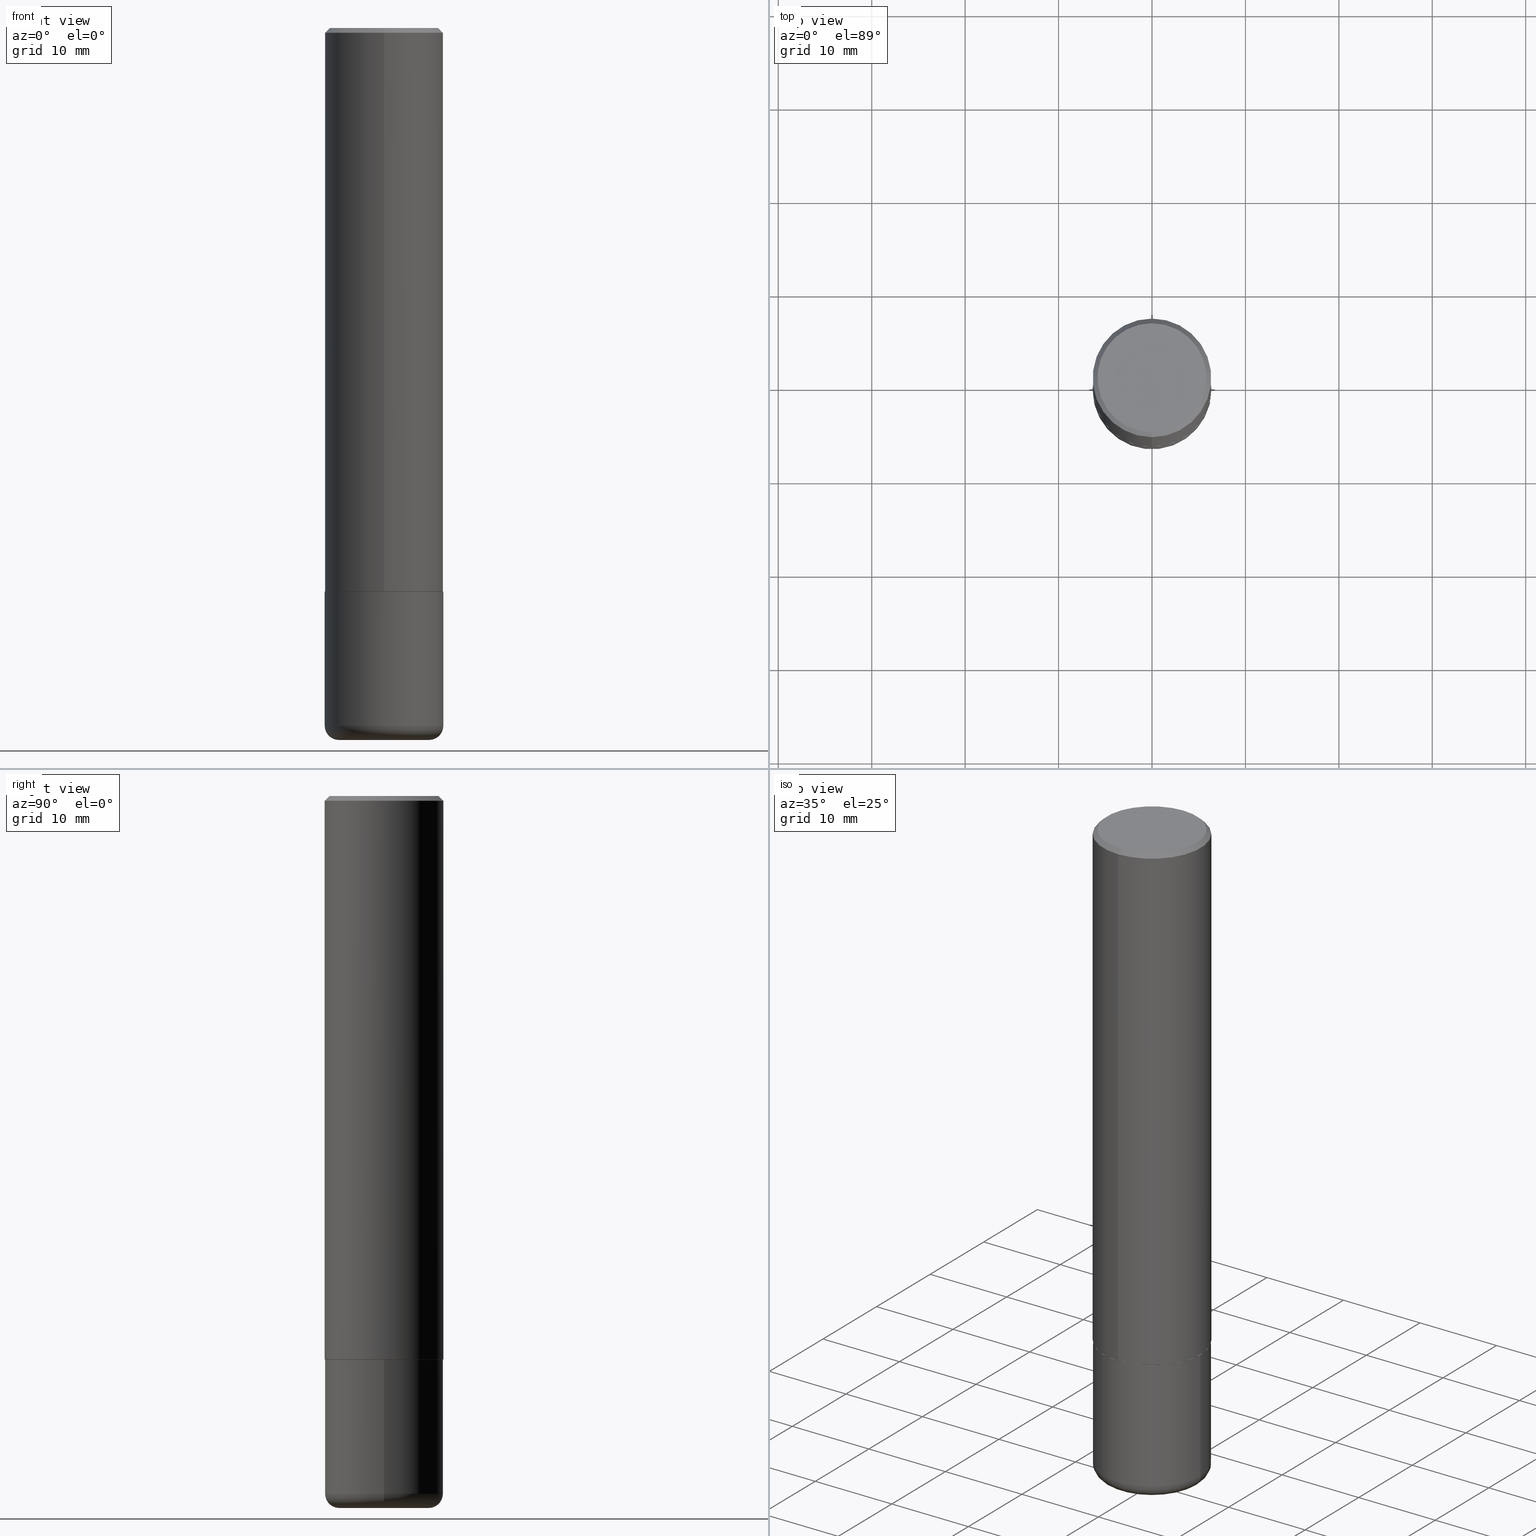
[diagram: canonical four-view strip — front | top / right | iso, engineering-drawing reading convention]
A machine part, canonical four-view strip (front | top / right | iso — engineering-drawing reading convention). The complete STEP part file that produces these views, byte-faithful:
ISO-10303-21;
HEADER;
FILE_DESCRIPTION (( 'STEP AP203' ),
    '1' );
FILE_NAME ('37027.STEP',
    '2024-03-01T18:52:10',
    ( '' ),
    ( '' ),
    'SwSTEP 2.0',
    'SolidWorks 2023',
    '' );
FILE_SCHEMA (( 'CONFIG_CONTROL_DESIGN' ));
ENDSEC;

DATA;
#1 = VERTEX_POINT ( 'NONE', #284 ) ;
#2 = DIRECTION ( 'NONE',  ( -2.445468806185136597E-29, 3.491481338843145583E-15, 1.000000000000000000 ) ) ;
#3 = ORIENTED_EDGE ( 'NONE', *, *, #314, .T. ) ;
#4 = ADVANCED_FACE ( 'NONE', ( #350 ), #411, .T. ) ;
#5 = AXIS2_PLACEMENT_3D ( 'NONE', #324, #34, #155 ) ;
#6 =( LENGTH_UNIT ( ) NAMED_UNIT ( * ) SI_UNIT ( $, .METRE. ) );
#7 = ORGANIZATION ( 'UNSPECIFIED', 'UNSPECIFIED', '' ) ;
#8 = VERTEX_POINT ( 'NONE', #317 ) ;
#9 = DIRECTION ( 'NONE',  ( -2.445468806185136597E-29, 3.491481338843145583E-15, 1.000000000000000000 ) ) ;
#10 = ORIENTED_EDGE ( 'NONE', *, *, #407, .T. ) ;
#11 =( NAMED_UNIT ( * ) SI_UNIT ( $, .STERADIAN. ) SOLID_ANGLE_UNIT ( ) );
#12 = DIRECTION ( 'NONE',  ( -6.982962677686265922E-15, -1.000000000000000000, 3.483106191921935554E-15 ) ) ;
#13 = ORIENTED_EDGE ( 'NONE', *, *, #338, .F. ) ;
#14 = ADVANCED_FACE ( 'NONE', ( #229 ), #253, .T. ) ;
#15 = CIRCLE ( 'NONE', #5, 0.2500000000000000000 ) ;
#16 = FACE_OUTER_BOUND ( 'NONE', #389, .T. ) ;
#17 = LOCAL_TIME ( 13, 52, 9.000000000000000000, #142 ) ;
#18 = ORIENTED_EDGE ( 'NONE', *, *, #351, .F. ) ;
#19 = PERSON_AND_ORGANIZATION ( #111, #7 ) ;
#20 = CARTESIAN_POINT ( 'NONE',  ( 4.891459535375212615E-31, -6.982215254237243146E-17, -0.02000000000000005593 ) ) ;
#21 = COORDINATED_UNIVERSAL_TIME_OFFSET ( 5, 0, .BEHIND. ) ;
#22 = AXIS2_PLACEMENT_3D ( 'NONE', #20, #398, #12 ) ;
#23 = ORIENTED_EDGE ( 'NONE', *, *, #178, .F. ) ;
#24 = EDGE_CURVE ( 'NONE', #74, #125, #77, .T. ) ;
#25 = AXIS2_PLACEMENT_3D ( 'NONE', #383, #360, #55 ) ;
#26 = DIRECTION ( 'NONE',  ( -2.445729767687599458E-29, 3.491107627118612255E-15, 1.000000000000000000 ) ) ;
#27 = ADVANCED_FACE ( 'NONE', ( #194 ), #318, .T. ) ;
#28 = FACE_OUTER_BOUND ( 'NONE', #35, .T. ) ;
#29 = AXIS2_PLACEMENT_3D ( 'NONE', #249, #281, #352 ) ;
#30 = EDGE_LOOP ( 'NONE', ( #60, #152 ) ) ;
#31 = DIRECTION ( 'NONE',  ( -2.445729767687599458E-29, 3.491107627118612255E-15, 1.000000000000000000 ) ) ;
#32 = CARTESIAN_POINT ( 'NONE',  ( 7.336406418555409790E-29, -1.047444401652943635E-14, -3.000000000000000444 ) ) ;
#33 = EDGE_CURVE ( 'NONE', #53, #225, #61, .T. ) ;
#34 = DIRECTION ( 'NONE',  ( -2.445729767687599458E-29, 3.491107627118612255E-15, 1.000000000000000000 ) ) ;
#35 = EDGE_LOOP ( 'NONE', ( #3, #40, #397, #18 ) ) ;
#36 = PRODUCT_DEFINITION_FORMATION_WITH_SPECIFIED_SOURCE ( 'ANY', '', #191, .NOT_KNOWN. ) ;
#37 = CARTESIAN_POINT ( 'NONE',  ( -1.715124499442882299E-15, -0.2500000000000000555, -0.01999999999999918510 ) ) ;
#38 = VERTEX_POINT ( 'NONE', #150 ) ;
#39 = CARTESIAN_POINT ( 'NONE',  ( 7.336406418555409790E-29, -1.047444401652943635E-14, -3.000000000000000444 ) ) ;
#40 = ORIENTED_EDGE ( 'NONE', *, *, #132, .T. ) ;
#41 = CC_DESIGN_PERSON_AND_ORGANIZATION_ASSIGNMENT ( #66, #308, ( #36 ) ) ;
#42 = DIRECTION ( 'NONE',  ( -2.445729767687598898E-29, 3.491107627118612649E-15, 1.000000000000000000 ) ) ;
#43 = DIRECTION ( 'NONE',  ( 2.438088387897960049E-29, -3.491481338843145188E-15, -1.000000000000000000 ) ) ;
#44 = EDGE_LOOP ( 'NONE', ( #240, #167 ) ) ;
#45 = PERSON_AND_ORGANIZATION_ROLE ( 'creator' ) ;
#46 = SECURITY_CLASSIFICATION ( '', '', #170 ) ;
#47 = DIRECTION ( 'NONE',  ( -6.982962677686265133E-15, -1.000000000000000000, 3.291383124896702687E-15 ) ) ;
#48 = DIRECTION ( 'NONE',  ( -1.000000000000000000, 6.982962677686265922E-15, -4.876176775795935793E-29 ) ) ;
#49 = EDGE_CURVE ( 'NONE', #38, #94, #415, .T. ) ;
#50 = APPROVAL_PERSON_ORGANIZATION ( #138, #71, #362 ) ;
#51 = DATE_AND_TIME ( #311, #160 ) ;
#52 = DIRECTION ( 'NONE',  ( -2.445729767687599458E-29, 3.491107627118612255E-15, 1.000000000000000000 ) ) ;
#53 = VERTEX_POINT ( 'NONE', #287 ) ;
#54 = DESIGN_CONTEXT ( 'detailed design', #121, 'design' ) ;
#55 = DIRECTION ( 'NONE',  ( -6.982962677686265922E-15, -1.000000000000000000, 3.278217592397112312E-15 ) ) ;
#56 = LINE ( 'NONE', #110, #223 ) ;
#57 = AXIS2_PLACEMENT_3D ( 'NONE', #404, #306, #400 ) ;
#58 = DIRECTION ( 'NONE',  ( -6.982962677686265133E-15, -1.000000000000000000, 3.291383124896702687E-15 ) ) ;
#59 = ADVANCED_FACE ( 'NONE', ( #217 ), #115, .T. ) ;
#60 = ORIENTED_EDGE ( 'NONE', *, *, #262, .F. ) ;
#61 = CIRCLE ( 'NONE', #25, 0.2500000000000002776 ) ;
#62 = VECTOR ( 'NONE', #131, 39.37007874015748143 ) ;
#63 =( GEOMETRIC_REPRESENTATION_CONTEXT ( 3 ) GLOBAL_UNCERTAINTY_ASSIGNED_CONTEXT ( ( #325 ) ) GLOBAL_UNIT_ASSIGNED_CONTEXT ( ( #373, #405, #11 ) ) REPRESENTATION_CONTEXT ( 'NONE', 'WORKASPACE' ) );
#64 = ORIENTED_EDGE ( 'NONE', *, *, #379, .F. ) ;
#65 = FACE_OUTER_BOUND ( 'NONE', #190, .T. ) ;
#66 = PERSON_AND_ORGANIZATION ( #111, #7 ) ;
#67 = CYLINDRICAL_SURFACE ( 'NONE', #57, 0.2500000000000001110 ) ;
#68 = ORIENTED_EDGE ( 'NONE', *, *, #178, .T. ) ;
#69 = APPROVAL_STATUS ( 'not_yet_approved' ) ;
#70 = CARTESIAN_POINT ( 'NONE',  ( -3.025389942482403152E-45, 4.318531852026494479E-31, 1.237009085162692923E-16 ) ) ;
#71 = APPROVAL ( #202, 'UNSPECIFIED' ) ;
#72 = ORIENTED_EDGE ( 'NONE', *, *, #33, .F. ) ;
#73 = DIRECTION ( 'NONE',  ( 5.024295867788576727E-15, 0.7071067811866224018, 0.7071067811864726327 ) ) ;
#74 = VERTEX_POINT ( 'NONE', #82 ) ;
#75 = APPROVAL_DATE_TIME ( #368, #71 ) ;
#76 = DIRECTION ( 'NONE',  ( -2.445729767687599458E-29, 3.491107627118612255E-15, 1.000000000000000000 ) ) ;
#77 = CIRCLE ( 'NONE', #257, 0.2500000000000000000 ) ;
#78 = DIRECTION ( 'NONE',  ( 1.000000000000000000, -6.982962677686266711E-15, 0.000000000000000000 ) ) ;
#79 = DIRECTION ( 'NONE',  ( -2.445468806185136597E-29, 3.491481338843145583E-15, 1.000000000000000000 ) ) ;
#80 = CC_DESIGN_APPROVAL ( #301, ( #184 ) ) ;
#81 = CC_DESIGN_DATE_AND_TIME_ASSIGNMENT ( #344, #315, ( #46 ) ) ;
#82 = CARTESIAN_POINT ( 'NONE',  ( 0.2500000000000000000, -1.003800884917403837E-14, -2.375000000000000000 ) ) ;
#83 = DIRECTION ( 'NONE',  ( -1.000000000000000000, 7.105427357600997914E-15, 0.000000000000000000 ) ) ;
#84 = ORIENTED_EDGE ( 'NONE', *, *, #153, .T. ) ;
#85 = EDGE_CURVE ( 'NONE', #268, #38, #148, .T. ) ;
#86 = CIRCLE ( 'NONE', #188, 0.1899999999999999745 ) ;
#87 = ORIENTED_EDGE ( 'NONE', *, *, #158, .T. ) ;
#88 = CARTESIAN_POINT ( 'NONE',  ( 0.000000000000000000, 0.000000000000000000, 0.000000000000000000 ) ) ;
#89 = DIRECTION ( 'NONE',  ( 2.445729767687599458E-29, -3.491107627118612255E-15, -1.000000000000000000 ) ) ;
#90 = AXIS2_PLACEMENT_3D ( 'NONE', #294, #250, #176 ) ;
#91 = ORIENTED_EDGE ( 'NONE', *, *, #218, .F. ) ;
#92 = CALENDAR_DATE ( 2024, 1, 3 ) ;
#93 = FACE_OUTER_BOUND ( 'NONE', #44, .T. ) ;
#94 = VERTEX_POINT ( 'NONE', #391 ) ;
#95 = CARTESIAN_POINT ( 'NONE',  ( 0.000000000000000000, 0.000000000000000000, 0.000000000000000000 ) ) ;
#96 = EDGE_CURVE ( 'NONE', #94, #204, #159, .T. ) ;
#97 = APPLICATION_CONTEXT ( 'configuration controlled 3d designs of mechanical parts and assemblies' ) ;
#98 = DIRECTION ( 'NONE',  ( 6.982962677686265922E-15, 1.000000000000000000, -3.491107627118612649E-15 ) ) ;
#99 = ORIENTED_EDGE ( 'NONE', *, *, #33, .T. ) ;
#100 = CIRCLE ( 'NONE', #358, 0.2299999999999998712 ) ;
#101 = AXIS2_PLACEMENT_3D ( 'NONE', #186, #31, #260 ) ;
#102 = DIRECTION ( 'NONE',  ( 4.937700262164541731E-15, 0.7071067811865442421, -0.7071067811865507924 ) ) ;
#103 = ORIENTED_EDGE ( 'NONE', *, *, #384, .T. ) ;
#104 = PERSON_AND_ORGANIZATION ( #111, #7 ) ;
#105 = CARTESIAN_POINT ( 'NONE',  ( 7.336406418555409790E-29, -1.047444401652943635E-14, -3.000000000000000444 ) ) ;
#106 = ADVANCED_FACE ( 'NONE', ( #65 ), #313, .T. ) ;
#107 = PLANE ( 'NONE',  #291 ) ;
#108 = CARTESIAN_POINT ( 'NONE',  ( 0.2499999999999999722, -1.201069580562041471E-14, -2.940000000000000391 ) ) ;
#109 = AXIS2_PLACEMENT_3D ( 'NONE', #146, #26, #58 ) ;
#110 = CARTESIAN_POINT ( 'NONE',  ( -1.738757706743822090E-15, -0.2490000000000082980, -2.374999999999999556 ) ) ;
#111 = PERSON ( 'UNSPECIFIED', 'UNSPECIFIED', 'UNSPECIFIED', ('UNSPECIFIED'), ('UNSPECIFIED'), ('UNSPECIFIED') ) ;
#112 = CARTESIAN_POINT ( 'NONE',  ( 1.776356839400251254E-15, 0.2500000000000001110, -8.727769067796535567E-16 ) ) ;
#113 = APPROVAL_DATE_TIME ( #51, #357 ) ;
#114 = CC_DESIGN_PERSON_AND_ORGANIZATION_ASSIGNMENT ( #339, #45, ( #36 ) ) ;
#115 = TOROIDAL_SURFACE ( 'NONE', #251, 0.1899999999999999745, 0.05999999999999995615 ) ;
#116 = DIRECTION ( 'NONE',  ( -6.982962677686266711E-15, -1.000000000000000000, 3.491107627118612649E-15 ) ) ;
#117 = LINE ( 'NONE', #112, #323 ) ;
#118 = CARTESIAN_POINT ( 'NONE',  ( 0.000000000000000000, 0.000000000000000000, 0.000000000000000000 ) ) ;
#119 = EDGE_CURVE ( 'NONE', #120, #8, #15, .T. ) ;
#120 = VERTEX_POINT ( 'NONE', #374 ) ;
#121 = APPLICATION_CONTEXT ( 'configuration controlled 3d designs of mechanical parts and assemblies' ) ;
#122 = CIRCLE ( 'NONE', #208, 0.2489999999999999991 ) ;
#123 = ORIENTED_EDGE ( 'NONE', *, *, #338, .T. ) ;
#124 = DIRECTION ( 'NONE',  ( 1.000000000000000000, -6.982962677686266711E-15, 4.876176775795935793E-29 ) ) ;
#125 = VERTEX_POINT ( 'NONE', #366 ) ;
#126 = PRODUCT_RELATED_PRODUCT_CATEGORY ( 'detail', '', ( #191 ) ) ;
#127 = DIRECTION ( 'NONE',  ( 1.000000000000000000, -6.982962677686262766E-15, 0.000000000000000000 ) ) ;
#128 = MANIFOLD_SOLID_BREP ( 'Body-Move/Copy2[1]', #285 ) ;
#129 = DIRECTION ( 'NONE',  ( -2.445468806185136597E-29, 3.491481338843145583E-15, 1.000000000000000000 ) ) ;
#130 = AXIS2_PLACEMENT_3D ( 'NONE', #333, #369, #48 ) ;
#131 = DIRECTION ( 'NONE',  ( -2.445468806185136877E-29, 3.491481338843145188E-15, 1.000000000000000000 ) ) ;
#132 = EDGE_CURVE ( 'NONE', #94, #125, #312, .T. ) ;
#133 = DIRECTION ( 'NONE',  ( -2.445729767687599458E-29, 3.491107627118612255E-15, 1.000000000000000000 ) ) ;
#134 = ORIENTED_EDGE ( 'NONE', *, *, #262, .T. ) ;
#135 = CARTESIAN_POINT ( 'NONE',  ( -1.646519519465166573E-15, -0.2299999999999998712, 9.266556627535495054E-16 ) ) ;
#136 = ORIENTED_EDGE ( 'NONE', *, *, #277, .T. ) ;
#137 = CONICAL_SURFACE ( 'NONE', #252, 0.2500000000000000000, 0.7853981633974471688 ) ;
#138 = PERSON_AND_ORGANIZATION ( #111, #7 ) ;
#139 = AXIS2_PLACEMENT_3D ( 'NONE', #355, #183, #151 ) ;
#140 = MANIFOLD_SOLID_BREP ( 'Body-Move/Copy2[2]', #341 ) ;
#141 = CARTESIAN_POINT ( 'NONE',  ( -0.2500000000000000000, 1.776356839400250465E-15, -1.229733772563726445E-29 ) ) ;
#142 = COORDINATED_UNIVERSAL_TIME_OFFSET ( 5, 0, .BEHIND. ) ;
#143 = FACE_OUTER_BOUND ( 'NONE', #258, .T. ) ;
#144 = CIRCLE ( 'NONE', #22, 0.2500000000000000000 ) ;
#145 = CC_DESIGN_DATE_AND_TIME_ASSIGNMENT ( #237, #302, ( #184 ) ) ;
#146 = CARTESIAN_POINT ( 'NONE',  ( 5.808608198258048994E-29, -8.291380614406705732E-15, -2.375000000000000000 ) ) ;
#147 = CARTESIAN_POINT ( 'NONE',  ( -1.745740669421567467E-15, -0.2500000000000001110, 8.727769067796535567E-16 ) ) ;
#148 = CIRCLE ( 'NONE', #354, 0.1899999999999999745 ) ;
#149 = ADVANCED_FACE ( 'NONE', ( #93 ), #231, .F. ) ;
#150 = CARTESIAN_POINT ( 'NONE',  ( -0.1899999999999999745, -8.806505557691924342E-15, -3.000000000000000444 ) ) ;
#151 = DIRECTION ( 'NONE',  ( -6.982962677686265133E-15, -1.000000000000000000, 3.291383124896702687E-15 ) ) ;
#152 = ORIENTED_EDGE ( 'NONE', *, *, #384, .F. ) ;
#153 = EDGE_CURVE ( 'NONE', #268, #204, #222, .T. ) ;
#154 = CARTESIAN_POINT ( 'NONE',  ( 7.189678290184301639E-29, -1.026495513619884961E-14, -2.940000000000000391 ) ) ;
#155 = DIRECTION ( 'NONE',  ( -6.982962677686265922E-15, -1.000000000000000000, 3.483106191921935554E-15 ) ) ;
#156 = PERSON_AND_ORGANIZATION ( #111, #7 ) ;
#157 = ORIENTED_EDGE ( 'NONE', *, *, #49, .T. ) ;
#158 = EDGE_CURVE ( 'NONE', #236, #288, #100, .T. ) ;
#159 = CIRCLE ( 'NONE', #180, 0.2500000000000000000 ) ;
#160 = LOCAL_TIME ( 13, 52, 9.000000000000000000, #21 ) ;
#161 = DIRECTION ( 'NONE',  ( -6.982962677686265922E-15, -1.000000000000000000, 3.491107627118612649E-15 ) ) ;
#162 = DIRECTION ( 'NONE',  ( -6.982962677686266711E-15, -1.000000000000000000, 3.491481338843145583E-15 ) ) ;
#163 = ORIENTED_EDGE ( 'NONE', *, *, #314, .F. ) ;
#164 = LINE ( 'NONE', #396, #388 ) ;
#165 = EDGE_LOOP ( 'NONE', ( #221, #157, #163, #399 ) ) ;
#166 = DIRECTION ( 'NONE',  ( -2.445468806185136597E-29, 3.491481338843145583E-15, 1.000000000000000000 ) ) ;
#167 = ORIENTED_EDGE ( 'NONE', *, *, #256, .T. ) ;
#168 = VECTOR ( 'NONE', #73, 39.37007874015748143 ) ;
#169 = CIRCLE ( 'NONE', #101, 0.2500000000000002776 ) ;
#170 = SECURITY_CLASSIFICATION_LEVEL ( 'unclassified' ) ;
#171 = CARTESIAN_POINT ( 'NONE',  ( 0.1899999999999999745, -1.180120692528982640E-14, -3.000000000000000444 ) ) ;
#172 = DIRECTION ( 'NONE',  ( -2.445729767687599458E-29, 3.491107627118612255E-15, 1.000000000000000000 ) ) ;
#173 = ADVANCED_FACE ( 'NONE', ( #16 ), #67, .T. ) ;
#174 = AXIS2_PLACEMENT_3D ( 'NONE', #70, #76, #238 ) ;
#175 = DIRECTION ( 'NONE',  ( -2.445729767687599458E-29, 3.491107627118612649E-15, 1.000000000000000000 ) ) ;
#176 = DIRECTION ( 'NONE',  ( 1.000000000000000000, -6.982962677686266711E-15, 4.876176775795935793E-29 ) ) ;
#177 = APPROVAL_ROLE ( '' ) ;
#178 = EDGE_CURVE ( 'NONE', #236, #120, #164, .T. ) ;
#179 = ORIENTED_EDGE ( 'NONE', *, *, #351, .T. ) ;
#180 = AXIS2_PLACEMENT_3D ( 'NONE', #154, #2, #127 ) ;
#181 = AXIS2_PLACEMENT_3D ( 'NONE', #95, #269, #192 ) ;
#182 = CARTESIAN_POINT ( 'NONE',  ( 7.189678290184301639E-29, -1.026495513619884961E-14, -2.940000000000000391 ) ) ;
#183 = DIRECTION ( 'NONE',  ( -2.445729767687599458E-29, 3.491107627118612255E-15, 1.000000000000000000 ) ) ;
#184 = PRODUCT_DEFINITION ( 'UNKNOWN', '', #36, #54 ) ;
#185 = ORIENTED_EDGE ( 'NONE', *, *, #205, .F. ) ;
#186 = CARTESIAN_POINT ( 'NONE',  ( 5.806162468490361962E-29, -8.287889506779587323E-15, -2.374000000000000110 ) ) ;
#187 = PRODUCT_DEFINITION_SHAPE ( 'NONE', 'NONE',  #184 ) ;
#188 = AXIS2_PLACEMENT_3D ( 'NONE', #105, #9, #242 ) ;
#189 = AXIS2_PLACEMENT_3D ( 'NONE', #254, #79, #278 ) ;
#190 = EDGE_LOOP ( 'NONE', ( #185, #337, #136, #23 ) ) ;
#191 = PRODUCT ( '37027', '37027', '', ( #365 ) ) ;
#192 = DIRECTION ( 'NONE',  ( 1.000000000000000000, 0.000000000000000000, 0.000000000000000000 ) ) ;
#193 = EDGE_CURVE ( 'NONE', #38, #268, #86, .T. ) ;
#194 = FACE_OUTER_BOUND ( 'NONE', #259, .T. ) ;
#195 = PERSON_AND_ORGANIZATION_ROLE ( 'classification_officer' ) ;
#196 = CARTESIAN_POINT ( 'NONE',  ( 1.769251412042707241E-15, 0.2489999999999917002, -2.375000000000000888 ) ) ;
#197 = VECTOR ( 'NONE', #203, 39.37007874015748143 ) ;
#198 = ORIENTED_EDGE ( 'NONE', *, *, #218, .T. ) ;
#199 = APPROVAL_ROLE ( '' ) ;
#200 = LINE ( 'NONE', #196, #168 ) ;
#201 = ORIENTED_EDGE ( 'NONE', *, *, #277, .F. ) ;
#202 = APPROVAL_STATUS ( 'not_yet_approved' ) ;
#203 = DIRECTION ( 'NONE',  ( -4.851104656540957964E-15, -0.7071067811865491270, -0.7071067811865459074 ) ) ;
#204 = VERTEX_POINT ( 'NONE', #108 ) ;
#205 = EDGE_CURVE ( 'NONE', #288, #236, #245, .T. ) ;
#206 = PERSON_AND_ORGANIZATION_ROLE ( 'creator' ) ;
#207 = CARTESIAN_POINT ( 'NONE',  ( 5.808608198258048994E-29, -8.291380614406705732E-15, -2.375000000000000000 ) ) ;
#208 = AXIS2_PLACEMENT_3D ( 'NONE', #207, #133, #47 ) ;
#209 = APPROVAL_PERSON_ORGANIZATION ( #280, #357, #177 ) ;
#210 = CARTESIAN_POINT ( 'NONE',  ( 5.808608198258048994E-29, -8.291380614406705732E-15, -2.375000000000000000 ) ) ;
#211 = SHAPE_DEFINITION_REPRESENTATION ( #187, #248 ) ;
#212 = AXIS2_PLACEMENT_3D ( 'NONE', #210, #172, #413 ) ;
#213 = APPROVAL_PERSON_ORGANIZATION ( #156, #301, #199 ) ;
#214 = CARTESIAN_POINT ( 'NONE',  ( 4.891459535375212615E-31, -6.982215254237243146E-17, -0.02000000000000005593 ) ) ;
#215 = ORIENTED_EDGE ( 'NONE', *, *, #193, .F. ) ;
#216 = DIRECTION ( 'NONE',  ( 2.445729767687599458E-29, -3.491107627118612255E-15, -1.000000000000000000 ) ) ;
#217 = FACE_OUTER_BOUND ( 'NONE', #165, .T. ) ;
#218 = EDGE_CURVE ( 'NONE', #1, #225, #200, .T. ) ;
#219 = DIRECTION ( 'NONE',  ( -2.445468806185136877E-29, 3.491481338843145188E-15, 1.000000000000000000 ) ) ;
#220 = EDGE_LOOP ( 'NONE', ( #307, #367, #84, #300 ) ) ;
#221 = ORIENTED_EDGE ( 'NONE', *, *, #85, .T. ) ;
#222 = CIRCLE ( 'NONE', #409, 0.05999999999999994227 ) ;
#223 = VECTOR ( 'NONE', #247, 39.37007874015748143 ) ;
#224 = CC_DESIGN_PERSON_AND_ORGANIZATION_ASSIGNMENT ( #104, #206, ( #184 ) ) ;
#225 = VERTEX_POINT ( 'NONE', #329 ) ;
#226 = AXIS2_PLACEMENT_3D ( 'NONE', #118, #52, #116 ) ;
#227 = DIRECTION ( 'NONE',  ( 6.982962677686265922E-15, 1.000000000000000000, -3.483106191921935554E-15 ) ) ;
#228 = LOCAL_TIME ( 13, 52, 9.000000000000000000, #241 ) ;
#229 = FACE_OUTER_BOUND ( 'NONE', #386, .T. ) ;
#230 = PERSON_AND_ORGANIZATION_ROLE ( 'design_owner' ) ;
#231 = PLANE ( 'NONE',  #130 ) ;
#232 = ORIENTED_EDGE ( 'NONE', *, *, #85, .F. ) ;
#233 = APPLICATION_PROTOCOL_DEFINITION ( 'international standard', 'config_control_design', 1994, #97 ) ;
#234 = DIRECTION ( 'NONE',  ( -6.982962677686265922E-15, -1.000000000000000000, 3.491107627118611860E-15 ) ) ;
#235 = AXIS2_PLACEMENT_3D ( 'NONE', #349, #293, #83 ) ;
#236 = VERTEX_POINT ( 'NONE', #340 ) ;
#237 = DATE_AND_TIME ( #92, #410 ) ;
#238 = DIRECTION ( 'NONE',  ( -6.982962677686265922E-15, -1.000000000000000000, 3.491107627118611860E-15 ) ) ;
#239 = EDGE_CURVE ( 'NONE', #288, #8, #303, .T. ) ;
#240 = ORIENTED_EDGE ( 'NONE', *, *, #24, .T. ) ;
#241 = COORDINATED_UNIVERSAL_TIME_OFFSET ( 5, 0, .BEHIND. ) ;
#242 = DIRECTION ( 'NONE',  ( 1.000000000000000000, -6.982962677686261977E-15, 0.000000000000000000 ) ) ;
#243 = CARTESIAN_POINT ( 'NONE',  ( 5.808608198258048994E-29, -8.291380614406705732E-15, -2.375000000000000000 ) ) ;
#244 = FACE_OUTER_BOUND ( 'NONE', #387, .T. ) ;
#245 = CIRCLE ( 'NONE', #174, 0.2299999999999998712 ) ;
#246 = ADVANCED_FACE ( 'NONE', ( #336 ), #299, .T. ) ;
#247 = DIRECTION ( 'NONE',  ( -4.937700262165053702E-15, -0.7071067811866175168, 0.7071067811864775177 ) ) ;
#248 = ADVANCED_BREP_SHAPE_REPRESENTATION ( '37027', ( #128, #140, #181 ), #63 ) ;
#249 = CARTESIAN_POINT ( 'NONE',  ( 7.189678290184301639E-29, -1.026495513619884961E-14, -2.940000000000000391 ) ) ;
#250 = DIRECTION ( 'NONE',  ( -2.445468806185136597E-29, 3.491481338843145583E-15, 1.000000000000000000 ) ) ;
#251 = AXIS2_PLACEMENT_3D ( 'NONE', #182, #326, #321 ) ;
#252 = AXIS2_PLACEMENT_3D ( 'NONE', #214, #216, #408 ) ;
#253 = CYLINDRICAL_SURFACE ( 'NONE', #90, 0.2500000000000000000 ) ;
#254 = CARTESIAN_POINT ( 'NONE',  ( 7.189678290184301639E-29, -1.026495513619884961E-14, -2.940000000000000391 ) ) ;
#255 = CARTESIAN_POINT ( 'NONE',  ( 5.807988414689700538E-29, -8.292268179752471696E-15, -2.375000000000000000 ) ) ;
#256 = EDGE_CURVE ( 'NONE', #125, #74, #279, .T. ) ;
#257 = AXIS2_PLACEMENT_3D ( 'NONE', #255, #263, #382 ) ;
#258 = EDGE_LOOP ( 'NONE', ( #87, #322 ) ) ;
#259 = EDGE_LOOP ( 'NONE', ( #134, #198, #72, #64 ) ) ;
#260 = DIRECTION ( 'NONE',  ( -6.982962677686265922E-15, -1.000000000000000000, 3.278217592397112312E-15 ) ) ;
#261 = CARTESIAN_POINT ( 'NONE',  ( 4.891459535375212615E-31, -6.982215254237243146E-17, -0.02000000000000005593 ) ) ;
#262 = EDGE_CURVE ( 'NONE', #304, #1, #122, .T. ) ;
#263 = DIRECTION ( 'NONE',  ( -2.445468806185136597E-29, 3.491481338843145583E-15, 1.000000000000000000 ) ) ;
#264 = VECTOR ( 'NONE', #219, 39.37007874015748143 ) ;
#265 = CALENDAR_DATE ( 2024, 1, 3 ) ;
#266 = DIRECTION ( 'NONE',  ( 1.000000000000000000, -6.982962677686274599E-15, 0.000000000000000000 ) ) ;
#267 = CARTESIAN_POINT ( 'NONE',  ( 1.606081415867840278E-15, 0.2299999999999998712, -7.411042999791457395E-16 ) ) ;
#268 = VERTEX_POINT ( 'NONE', #171 ) ;
#269 = DIRECTION ( 'NONE',  ( 0.000000000000000000, 0.000000000000000000, 1.000000000000000000 ) ) ;
#270 = ADVANCED_FACE ( 'NONE', ( #143 ), #309, .F. ) ;
#271 = CARTESIAN_POINT ( 'NONE',  ( -1.738757706743822090E-15, -0.2490000000000082980, -2.374999999999999556 ) ) ;
#272 = VECTOR ( 'NONE', #380, 39.37007874015748143 ) ;
#273 = ORIENTED_EDGE ( 'NONE', *, *, #320, .F. ) ;
#274 = PERSON_AND_ORGANIZATION ( #111, #7 ) ;
#275 = DIRECTION ( 'NONE',  ( -2.445729767687599458E-29, 3.491107627118612255E-15, 1.000000000000000000 ) ) ;
#276 = CARTESIAN_POINT ( 'NONE',  ( 5.807988414689700538E-29, -8.292268179752471696E-15, -2.375000000000000000 ) ) ;
#277 = EDGE_CURVE ( 'NONE', #8, #120, #144, .T. ) ;
#278 = DIRECTION ( 'NONE',  ( 1.000000000000000000, -6.982962677686265133E-15, 4.883557194083112340E-29 ) ) ;
#279 = CIRCLE ( 'NONE', #328, 0.2500000000000000000 ) ;
#280 = PERSON_AND_ORGANIZATION ( #111, #7 ) ;
#281 = DIRECTION ( 'NONE',  ( -2.445468806185136597E-29, 3.491481338843145583E-15, 1.000000000000000000 ) ) ;
#282 = LINE ( 'NONE', #147, #272 ) ;
#283 = CC_DESIGN_PERSON_AND_ORGANIZATION_ASSIGNMENT ( #274, #230, ( #191 ) ) ;
#284 = CARTESIAN_POINT ( 'NONE',  ( 1.772804125721508731E-15, 0.2489999999999917002, -2.375000000000000888 ) ) ;
#285 = CLOSED_SHELL ( 'NONE', ( #394, #59, #149, #14, #345, #246 ) ) ;
#286 = CC_DESIGN_APPROVAL ( #357, ( #46 ) ) ;
#287 = CARTESIAN_POINT ( 'NONE',  ( -1.745740669421510471E-15, -0.2500000000000085487, -2.373999999999999222 ) ) ;
#288 = VERTEX_POINT ( 'NONE', #135 ) ;
#289 = CYLINDRICAL_SURFACE ( 'NONE', #401, 0.2500000000000000000 ) ;
#290 = CIRCLE ( 'NONE', #29, 0.2500000000000000000 ) ;
#291 = AXIS2_PLACEMENT_3D ( 'NONE', #243, #42, #161 ) ;
#292 = ORIENTED_EDGE ( 'NONE', *, *, #132, .F. ) ;
#293 = DIRECTION ( 'NONE',  ( 7.105427357601001859E-15, 1.000000000000000000, -3.491481338843145583E-15 ) ) ;
#294 = CARTESIAN_POINT ( 'NONE',  ( 0.000000000000000000, 0.000000000000000000, 0.000000000000000000 ) ) ;
#295 = COORDINATED_UNIVERSAL_TIME_OFFSET ( 5, 0, .BEHIND. ) ;
#296 = AXIS2_PLACEMENT_3D ( 'NONE', #39, #43, #372 ) ;
#297 = ORIENTED_EDGE ( 'NONE', *, *, #158, .F. ) ;
#298 = LENGTH_MEASURE_WITH_UNIT ( LENGTH_MEASURE( 0.02539999999999999897 ), #6 );
#299 = PLANE ( 'NONE',  #296 ) ;
#300 = ORIENTED_EDGE ( 'NONE', *, *, #96, .F. ) ;
#301 = APPROVAL ( #69, 'UNSPECIFIED' ) ;
#302 = DATE_TIME_ROLE ( 'creation_date' ) ;
#303 = LINE ( 'NONE', #37, #197 ) ;
#304 = VERTEX_POINT ( 'NONE', #271 ) ;
#305 = APPROVAL_DATE_TIME ( #395, #301 ) ;
#306 = DIRECTION ( 'NONE',  ( -2.445729767687599458E-29, 3.491107627118612255E-15, 1.000000000000000000 ) ) ;
#307 = ORIENTED_EDGE ( 'NONE', *, *, #49, .F. ) ;
#308 = PERSON_AND_ORGANIZATION_ROLE ( 'design_supplier' ) ;
#309 = PLANE ( 'NONE',  #381 ) ;
#310 = ADVANCED_FACE ( 'NONE', ( #244 ), #346, .T. ) ;
#311 = CALENDAR_DATE ( 2024, 1, 3 ) ;
#312 = LINE ( 'NONE', #141, #62 ) ;
#313 = CONICAL_SURFACE ( 'NONE', #375, 0.2500000000000000000, 0.7853981633974471688 ) ;
#314 = EDGE_CURVE ( 'NONE', #204, #94, #290, .T. ) ;
#315 = DATE_TIME_ROLE ( 'classification_date' ) ;
#316 = ORIENTED_EDGE ( 'NONE', *, *, #407, .F. ) ;
#317 = CARTESIAN_POINT ( 'NONE',  ( -1.715124499442882299E-15, -0.2500000000000000555, -0.01999999999999918510 ) ) ;
#318 = CONICAL_SURFACE ( 'NONE', #109, 0.2489999999999999991, 0.7853981633975507526 ) ;
#319 = CIRCLE ( 'NONE', #139, 0.2489999999999999991 ) ;
#320 = EDGE_CURVE ( 'NONE', #53, #8, #282, .T. ) ;
#321 = DIRECTION ( 'NONE',  ( 1.000000000000000000, -6.982962677686265133E-15, 4.883557194083112340E-29 ) ) ;
#322 = ORIENTED_EDGE ( 'NONE', *, *, #205, .T. ) ;
#323 = VECTOR ( 'NONE', #175, 39.37007874015748143 ) ;
#324 = CARTESIAN_POINT ( 'NONE',  ( 4.891459535375212615E-31, -6.982215254237243146E-17, -0.02000000000000005593 ) ) ;
#325 = UNCERTAINTY_MEASURE_WITH_UNIT (LENGTH_MEASURE( 1.000000000000000082E-05 ), #373, 'distance_accuracy_value', 'NONE');
#326 = DIRECTION ( 'NONE',  ( -2.445468806185136597E-29, 3.491481338843145583E-15, 1.000000000000000000 ) ) ;
#327 = CALENDAR_DATE ( 2024, 1, 3 ) ;
#328 = AXIS2_PLACEMENT_3D ( 'NONE', #276, #166, #78 ) ;
#329 = CARTESIAN_POINT ( 'NONE',  ( 1.776356839400280836E-15, 0.2499999999999919786, -2.374000000000000998 ) ) ;
#330 = ADVANCED_FACE ( 'NONE', ( #385 ), #137, .T. ) ;
#331 = ORIENTED_EDGE ( 'NONE', *, *, #320, .T. ) ;
#332 = COORDINATED_UNIVERSAL_TIME_OFFSET ( 5, 0, .BEHIND. ) ;
#333 = CARTESIAN_POINT ( 'NONE',  ( 5.807988414689700538E-29, -8.292268179752471696E-15, -2.375000000000000000 ) ) ;
#334 = EDGE_LOOP ( 'NONE', ( #356, #297, #68, #414 ) ) ;
#335 = FACE_OUTER_BOUND ( 'NONE', #30, .T. ) ;
#336 = FACE_OUTER_BOUND ( 'NONE', #370, .T. ) ;
#337 = ORIENTED_EDGE ( 'NONE', *, *, #239, .T. ) ;
#338 = EDGE_CURVE ( 'NONE', #225, #120, #117, .T. ) ;
#339 = PERSON_AND_ORGANIZATION ( #111, #7 ) ;
#340 = CARTESIAN_POINT ( 'NONE',  ( 1.675911042644703577E-15, 0.2299999999999998712, -6.792538457210110194E-16 ) ) ;
#341 = CLOSED_SHELL ( 'NONE', ( #27, #4, #106, #330, #173, #310, #417, #270 ) ) ;
#342 = DIMENSIONAL_EXPONENTS ( 1.000000000000000000, 0.000000000000000000, 0.000000000000000000, 0.000000000000000000, 0.000000000000000000, 0.000000000000000000, 0.000000000000000000 ) ;
#343 = CARTESIAN_POINT ( 'NONE',  ( -3.025389942482403152E-45, 4.318531852026494479E-31, 1.237009085162692923E-16 ) ) ;
#344 = DATE_AND_TIME ( #327, #17 ) ;
#345 = ADVANCED_FACE ( 'NONE', ( #378 ), #376, .T. ) ;
#346 = CONICAL_SURFACE ( 'NONE', #212, 0.2489999999999999991, 0.7853981633975507526 ) ;
#347 = LOCAL_TIME ( 13, 52, 9.000000000000000000, #295 ) ;
#348 = CARTESIAN_POINT ( 'NONE',  ( 0.2500000000000000000, -1.745740669421566678E-15, 1.219044193948983948E-29 ) ) ;
#349 = CARTESIAN_POINT ( 'NONE',  ( -0.1899999999999999745, -8.914923938254659640E-15, -2.940000000000000391 ) ) ;
#350 = FACE_OUTER_BOUND ( 'NONE', #402, .T. ) ;
#351 = EDGE_CURVE ( 'NONE', #204, #74, #377, .T. ) ;
#352 = DIRECTION ( 'NONE',  ( 1.000000000000000000, -6.982962677686262766E-15, 0.000000000000000000 ) ) ;
#353 = ORIENTED_EDGE ( 'NONE', *, *, #96, .T. ) ;
#354 = AXIS2_PLACEMENT_3D ( 'NONE', #32, #129, #361 ) ;
#355 = CARTESIAN_POINT ( 'NONE',  ( 5.808608198258048994E-29, -8.291380614406705732E-15, -2.375000000000000000 ) ) ;
#356 = ORIENTED_EDGE ( 'NONE', *, *, #239, .F. ) ;
#357 = APPROVAL ( #412, 'UNSPECIFIED' ) ;
#358 = AXIS2_PLACEMENT_3D ( 'NONE', #343, #275, #234 ) ;
#359 = CC_DESIGN_SECURITY_CLASSIFICATION ( #46, ( #36 ) ) ;
#360 = DIRECTION ( 'NONE',  ( -2.445729767687599458E-29, 3.491107627118612255E-15, 1.000000000000000000 ) ) ;
#361 = DIRECTION ( 'NONE',  ( 1.000000000000000000, -6.982962677686261977E-15, 0.000000000000000000 ) ) ;
#362 = APPROVAL_ROLE ( '' ) ;
#363 = CARTESIAN_POINT ( 'NONE',  ( 0.1899999999999999745, -1.159171804495923808E-14, -2.940000000000000391 ) ) ;
#364 = ORIENTED_EDGE ( 'NONE', *, *, #119, .F. ) ;
#365 = MECHANICAL_CONTEXT ( 'NONE', #97, 'mechanical' ) ;
#366 = CARTESIAN_POINT ( 'NONE',  ( -0.2500000000000000000, -7.502254818575409401E-15, -2.375000000000000000 ) ) ;
#367 = ORIENTED_EDGE ( 'NONE', *, *, #193, .T. ) ;
#368 = DATE_AND_TIME ( #371, #228 ) ;
#369 = DIRECTION ( 'NONE',  ( 2.438088387897960049E-29, -3.491481338843145188E-15, -1.000000000000000000 ) ) ;
#370 = EDGE_LOOP ( 'NONE', ( #232, #215 ) ) ;
#371 = CALENDAR_DATE ( 2024, 1, 3 ) ;
#372 = DIRECTION ( 'NONE',  ( -1.000000000000000000, 6.982962677686265922E-15, -4.876176775795935793E-29 ) ) ;
#373 =( CONVERSION_BASED_UNIT ( 'INCH', #298 ) LENGTH_UNIT ( ) NAMED_UNIT ( #342 ) );
#374 = CARTESIAN_POINT ( 'NONE',  ( 1.745740669421566875E-15, 0.2499999999999999167, -0.02000000000000092676 ) ) ;
#375 = AXIS2_PLACEMENT_3D ( 'NONE', #261, #89, #227 ) ;
#376 = TOROIDAL_SURFACE ( 'NONE', #189, 0.1899999999999999745, 0.05999999999999995615 ) ;
#377 = LINE ( 'NONE', #348, #264 ) ;
#378 = FACE_OUTER_BOUND ( 'NONE', #220, .T. ) ;
#379 = EDGE_CURVE ( 'NONE', #304, #53, #56, .T. ) ;
#380 = DIRECTION ( 'NONE',  ( -2.445729767687599458E-29, 3.491107627118612649E-15, 1.000000000000000000 ) ) ;
#381 = AXIS2_PLACEMENT_3D ( 'NONE', #267, #406, #98 ) ;
#382 = DIRECTION ( 'NONE',  ( 1.000000000000000000, -6.982962677686266711E-15, 0.000000000000000000 ) ) ;
#383 = CARTESIAN_POINT ( 'NONE',  ( 5.806162468490361962E-29, -8.287889506779587323E-15, -2.374000000000000110 ) ) ;
#384 = EDGE_CURVE ( 'NONE', #1, #304, #319, .T. ) ;
#385 = FACE_OUTER_BOUND ( 'NONE', #334, .T. ) ;
#386 = EDGE_LOOP ( 'NONE', ( #292, #353, #179, #416 ) ) ;
#387 = EDGE_LOOP ( 'NONE', ( #91, #103, #393, #316 ) ) ;
#388 = VECTOR ( 'NONE', #102, 39.37007874015748143 ) ;
#389 = EDGE_LOOP ( 'NONE', ( #13, #10, #331, #364 ) ) ;
#390 = CC_DESIGN_PERSON_AND_ORGANIZATION_ASSIGNMENT ( #19, #195, ( #46 ) ) ;
#391 = CARTESIAN_POINT ( 'NONE',  ( -0.2499999999999999722, -8.488598296798599150E-15, -2.940000000000000391 ) ) ;
#392 = CC_DESIGN_APPROVAL ( #71, ( #36 ) ) ;
#393 = ORIENTED_EDGE ( 'NONE', *, *, #379, .T. ) ;
#394 = ADVANCED_FACE ( 'NONE', ( #28 ), #289, .T. ) ;
#395 = DATE_AND_TIME ( #265, #347 ) ;
#396 = CARTESIAN_POINT ( 'NONE',  ( 1.745740669421566875E-15, 0.2499999999999999167, -0.02000000000000092676 ) ) ;
#397 = ORIENTED_EDGE ( 'NONE', *, *, #24, .F. ) ;
#398 = DIRECTION ( 'NONE',  ( -2.445729767687599458E-29, 3.491107627118612255E-15, 1.000000000000000000 ) ) ;
#399 = ORIENTED_EDGE ( 'NONE', *, *, #153, .F. ) ;
#400 = DIRECTION ( 'NONE',  ( -6.982962677686266711E-15, -1.000000000000000000, 3.491107627118612649E-15 ) ) ;
#401 = AXIS2_PLACEMENT_3D ( 'NONE', #88, #418, #124 ) ;
#402 = EDGE_LOOP ( 'NONE', ( #99, #123, #201, #273 ) ) ;
#403 = APPLICATION_PROTOCOL_DEFINITION ( 'international standard', 'config_control_design', 1994, #121 ) ;
#404 = CARTESIAN_POINT ( 'NONE',  ( 0.000000000000000000, 0.000000000000000000, 0.000000000000000000 ) ) ;
#405 =( NAMED_UNIT ( * ) PLANE_ANGLE_UNIT ( ) SI_UNIT ( $, .RADIAN. ) );
#406 = DIRECTION ( 'NONE',  ( 2.445729767687598898E-29, -3.491107627118612649E-15, -1.000000000000000000 ) ) ;
#407 = EDGE_CURVE ( 'NONE', #225, #53, #169, .T. ) ;
#408 = DIRECTION ( 'NONE',  ( 6.982962677686265922E-15, 1.000000000000000000, -3.483106191921935554E-15 ) ) ;
#409 = AXIS2_PLACEMENT_3D ( 'NONE', #363, #162, #266 ) ;
#410 = LOCAL_TIME ( 13, 52, 9.000000000000000000, #332 ) ;
#411 = CYLINDRICAL_SURFACE ( 'NONE', #226, 0.2500000000000001110 ) ;
#412 = APPROVAL_STATUS ( 'not_yet_approved' ) ;
#413 = DIRECTION ( 'NONE',  ( -6.982962677686265133E-15, -1.000000000000000000, 3.291383124896702687E-15 ) ) ;
#414 = ORIENTED_EDGE ( 'NONE', *, *, #119, .T. ) ;
#415 = CIRCLE ( 'NONE', #235, 0.05999999999999994227 ) ;
#416 = ORIENTED_EDGE ( 'NONE', *, *, #256, .F. ) ;
#417 = ADVANCED_FACE ( 'NONE', ( #335 ), #107, .F. ) ;
#418 = DIRECTION ( 'NONE',  ( -2.445468806185136597E-29, 3.491481338843145583E-15, 1.000000000000000000 ) ) ;
ENDSEC;
END-ISO-10303-21;
